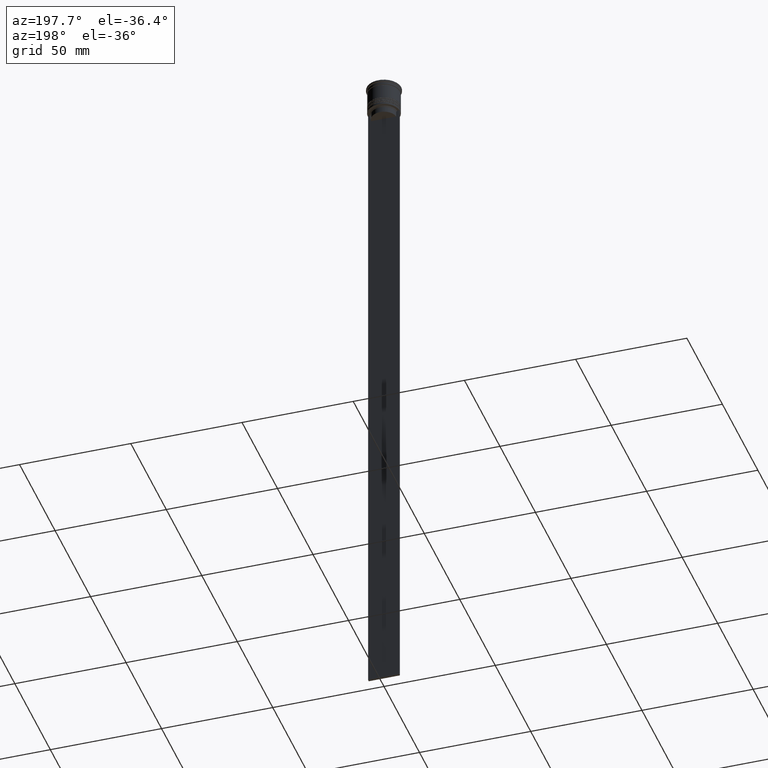
[diagram: clean part render]
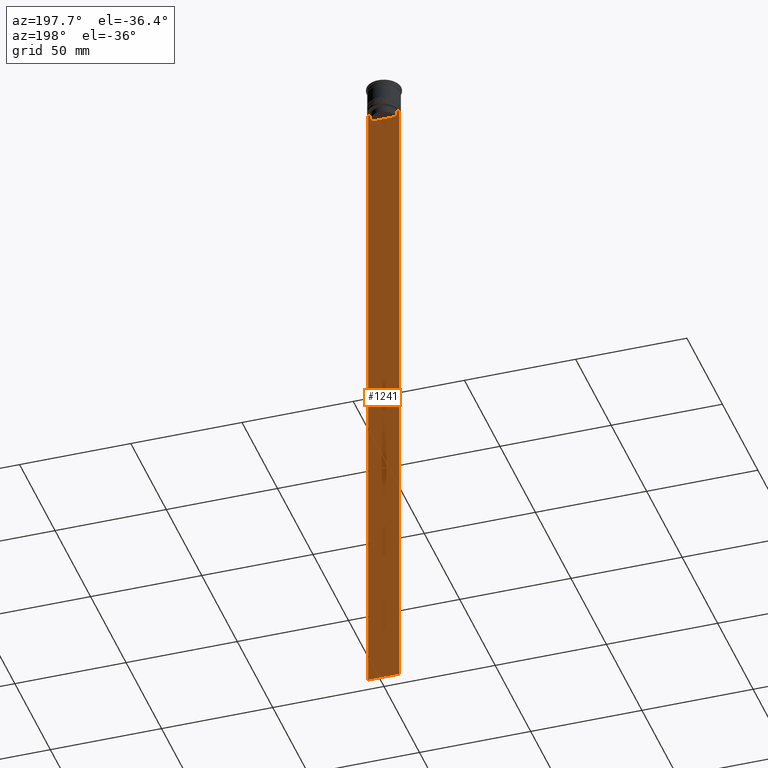
[diagram: same view with one face highlighted and labeled with its STEP entity id]
A machine part, auxiliary view. The second image highlights one B-rep face of the part: STEP entity #1241.
In plain terms, the highlighted planar face has unit normal (0, -1, -0).
Its self-contained STEP definition (entity closure, byte-faithful):
#3 = B_SPLINE_CURVE_WITH_KNOTS ( 'NONE', 3,
 ( #964, #777, #1309, #1476 ),
 .UNSPECIFIED., .F., .F.,
 ( 4, 4 ),
 ( 0.01045365750109871796, 0.01116204421161398619 ),
 .UNSPECIFIED. ) ;
#6 = CARTESIAN_POINT ( 'NONE',  ( 7.000000000000012434, 0.4999999999999978351, -312.5000000000000000 ) ) ;
#97 = CARTESIAN_POINT ( 'NONE',  ( 7.000000000000012434, 0.4999999999999978351, -312.5000000000000000 ) ) ;
#98 = CARTESIAN_POINT ( 'NONE',  ( 5.795128760752291441, 0.4999999999999978351, -12.83336023406855020 ) ) ;
#134 = CARTESIAN_POINT ( 'NONE',  ( 6.129641098791995368, 0.4999999999999978351, -12.50000000000000000 ) ) ;
#151 = DIRECTION ( 'NONE',  ( 0.000000000000000000, -1.000000000000000000, -0.000000000000000000 ) ) ;
#174 = ORIENTED_EDGE ( 'NONE', *, *, #1011, .T. ) ;
#177 = CARTESIAN_POINT ( 'NONE',  ( 7.000000000000012434, 0.4999999999999978351, 1.535668847618198329 ) ) ;
#256 = EDGE_CURVE ( 'NONE', #926, #1182, #1370, .T. ) ;
#266 = LINE ( 'NONE', #1522, #429 ) ;
#311 = CARTESIAN_POINT ( 'NONE',  ( 6.129641098791995368, 0.4999999999999978351, -12.50000000000000000 ) ) ;
#319 = VERTEX_POINT ( 'NONE', #1572 ) ;
#322 = FACE_OUTER_BOUND ( 'NONE', #1041, .T. ) ;
#329 = CARTESIAN_POINT ( 'NONE',  ( 7.000000000000012434, 0.4999999999999978351, 1.535668847618198329 ) ) ;
#342 = EDGE_CURVE ( 'NONE', #399, #319, #1209, .T. ) ;
#344 = LINE ( 'NONE', #1459, #815 ) ;
#349 = DIRECTION ( 'NONE',  ( 0.000000000000000000, 0.000000000000000000, -1.000000000000000000 ) ) ;
#399 = VERTEX_POINT ( 'NONE', #1766 ) ;
#400 = CARTESIAN_POINT ( 'NONE',  ( -5.627832620112292794, 0.4999999999999978351, 0.000000000000000000 ) ) ;
#406 = EDGE_CURVE ( 'NONE', #554, #399, #344, .T. ) ;
#429 = VECTOR ( 'NONE', #809, 1000.000000000000000 ) ;
#464 = ORIENTED_EDGE ( 'NONE', *, *, #1436, .T. ) ;
#476 = VECTOR ( 'NONE', #1756, 1000.000000000000000 ) ;
#477 = DIRECTION ( 'NONE',  ( -0.000000000000000000, -0.000000000000000000, 1.000000000000000000 ) ) ;
#500 = VECTOR ( 'NONE', #1013, 1000.000000000000000 ) ;
#554 = VERTEX_POINT ( 'NONE', #1867 ) ;
#644 = CARTESIAN_POINT ( 'NONE',  ( 7.000000000000012434, 0.4999999999999978351, -12.50000000000000000 ) ) ;
#680 = LINE ( 'NONE', #1397, #500 ) ;
#739 = CARTESIAN_POINT ( 'NONE',  ( -5.627832620112292794, 0.4999999999999978351, -13.00000000000000000 ) ) ;
#741 = VERTEX_POINT ( 'NONE', #134 ) ;
#749 = CARTESIAN_POINT ( 'NONE',  ( 7.000000000000012434, 0.4999999999999978351, -12.50000000000000000 ) ) ;
#777 = CARTESIAN_POINT ( 'NONE',  ( -5.962396146966409738, 0.4999999999999978351, -12.66669130573587054 ) ) ;
#809 = DIRECTION ( 'NONE',  ( 1.000000000000000000, 0.000000000000000000, 0.000000000000000000 ) ) ;
#815 = VECTOR ( 'NONE', #2165, 1000.000000000000000 ) ;
#886 = VECTOR ( 'NONE', #477, 1000.000000000000000 ) ;
#919 = EDGE_CURVE ( 'NONE', #1009, #1270, #3, .T. ) ;
#926 = VERTEX_POINT ( 'NONE', #749 ) ;
#950 = DIRECTION ( 'NONE',  ( 0.000000000000000000, 0.000000000000000000, -1.000000000000000000 ) ) ;
#964 = CARTESIAN_POINT ( 'NONE',  ( -6.129641098791995368, 0.4999999999999978351, -12.50000000000000000 ) ) ;
#966 = ORIENTED_EDGE ( 'NONE', *, *, #256, .T. ) ;
#1009 = VERTEX_POINT ( 'NONE', #1838 ) ;
#1011 = EDGE_CURVE ( 'NONE', #1270, #554, #1130, .T. ) ;
#1013 = DIRECTION ( 'NONE',  ( 0.000000000000000000, 0.000000000000000000, -1.000000000000000000 ) ) ;
#1041 = EDGE_LOOP ( 'NONE', ( #1474, #1893, #174, #2320, #1308, #1139, #464, #966, #1232, #2094 ) ) ;
#1087 = DIRECTION ( 'NONE',  ( 1.000000000000000000, 0.000000000000000000, 0.000000000000000000 ) ) ;
#1130 = LINE ( 'NONE', #400, #1767 ) ;
#1133 = EDGE_CURVE ( 'NONE', #1404, #1276, #680, .T. ) ;
#1139 = ORIENTED_EDGE ( 'NONE', *, *, #1635, .T. ) ;
#1143 = VECTOR ( 'NONE', #2276, 1000.000000000000000 ) ;
#1144 = EDGE_CURVE ( 'NONE', #1182, #1276, #1724, .T. ) ;
#1182 = VERTEX_POINT ( 'NONE', #6 ) ;
#1209 = LINE ( 'NONE', #1382, #886 ) ;
#1219 = CARTESIAN_POINT ( 'NONE',  ( 5.962396079681187011, 0.4999999999999978351, -12.66669137279835411 ) ) ;
#1232 = ORIENTED_EDGE ( 'NONE', *, *, #1144, .T. ) ;
#1241 = ADVANCED_FACE ( 'NONE', ( #322 ), #1576, .F. ) ;
#1268 = CARTESIAN_POINT ( 'NONE',  ( -6.999999999999987566, 0.4999999999999978351, -312.5000000000000000 ) ) ;
#1270 = VERTEX_POINT ( 'NONE', #739 ) ;
#1276 = VERTEX_POINT ( 'NONE', #1268 ) ;
#1308 = ORIENTED_EDGE ( 'NONE', *, *, #342, .T. ) ;
#1309 = CARTESIAN_POINT ( 'NONE',  ( -5.795128834036803234, 0.4999999999999978351, -12.83336016107156574 ) ) ;
#1370 = LINE ( 'NONE', #329, #476 ) ;
#1382 = CARTESIAN_POINT ( 'NONE',  ( 5.627832620112292794, 0.4999999999999978351, 0.000000000000000000 ) ) ;
#1397 = CARTESIAN_POINT ( 'NONE',  ( -6.999999999999987566, 0.4999999999999978351, 1.535668847618198329 ) ) ;
#1404 = VERTEX_POINT ( 'NONE', #1494 ) ;
#1436 = EDGE_CURVE ( 'NONE', #741, #926, #266, .T. ) ;
#1459 = CARTESIAN_POINT ( 'NONE',  ( 0.000000000000000000, 0.4999999999999978351, -15.50000000000000000 ) ) ;
#1474 = ORIENTED_EDGE ( 'NONE', *, *, #2204, .T. ) ;
#1476 = CARTESIAN_POINT ( 'NONE',  ( -5.627832620112292794, 0.4999999999999978351, -13.00000000000000000 ) ) ;
#1494 = CARTESIAN_POINT ( 'NONE',  ( -6.999999999999987566, 0.4999999999999980571, -12.50000000000000000 ) ) ;
#1522 = CARTESIAN_POINT ( 'NONE',  ( 7.000000000000012434, 0.4999999999999978351, -12.50000000000000000 ) ) ;
#1572 = CARTESIAN_POINT ( 'NONE',  ( 5.627832620112292794, 0.4999999999999978351, -13.00000000000000000 ) ) ;
#1576 = PLANE ( 'NONE',  #2003 ) ;
#1590 = VECTOR ( 'NONE', #1087, 1000.000000000000000 ) ;
#1635 = EDGE_CURVE ( 'NONE', #319, #741, #2316, .T. ) ;
#1707 = CARTESIAN_POINT ( 'NONE',  ( 5.627832620112292794, 0.4999999999999978351, -13.00000000000000000 ) ) ;
#1724 = LINE ( 'NONE', #97, #1143 ) ;
#1756 = DIRECTION ( 'NONE',  ( 0.000000000000000000, 0.000000000000000000, -1.000000000000000000 ) ) ;
#1766 = CARTESIAN_POINT ( 'NONE',  ( 5.627832620112292794, 0.4999999999999978351, -15.50000000000000000 ) ) ;
#1767 = VECTOR ( 'NONE', #950, 1000.000000000000000 ) ;
#1838 = CARTESIAN_POINT ( 'NONE',  ( -6.129641098791995368, 0.4999999999999978351, -12.50000000000000000 ) ) ;
#1867 = CARTESIAN_POINT ( 'NONE',  ( -5.627832620112292794, 0.4999999999999978351, -15.50000000000000000 ) ) ;
#1893 = ORIENTED_EDGE ( 'NONE', *, *, #919, .T. ) ;
#2003 = AXIS2_PLACEMENT_3D ( 'NONE', #177, #151, #349 ) ;
#2094 = ORIENTED_EDGE ( 'NONE', *, *, #1133, .F. ) ;
#2165 = DIRECTION ( 'NONE',  ( 1.000000000000000000, 0.000000000000000000, 0.000000000000000000 ) ) ;
#2204 = EDGE_CURVE ( 'NONE', #1404, #1009, #2249, .T. ) ;
#2249 = LINE ( 'NONE', #644, #1590 ) ;
#2276 = DIRECTION ( 'NONE',  ( -1.000000000000000000, 0.000000000000000000, 0.000000000000000000 ) ) ;
#2316 = B_SPLINE_CURVE_WITH_KNOTS ( 'NONE', 3,
 ( #1707, #98, #1219, #311 ),
 .UNSPECIFIED., .F., .F.,
 ( 4, 4 ),
 ( 0.02651134470867373347, 0.02721991123504337307 ),
 .UNSPECIFIED. ) ;
#2320 = ORIENTED_EDGE ( 'NONE', *, *, #406, .T. ) ;